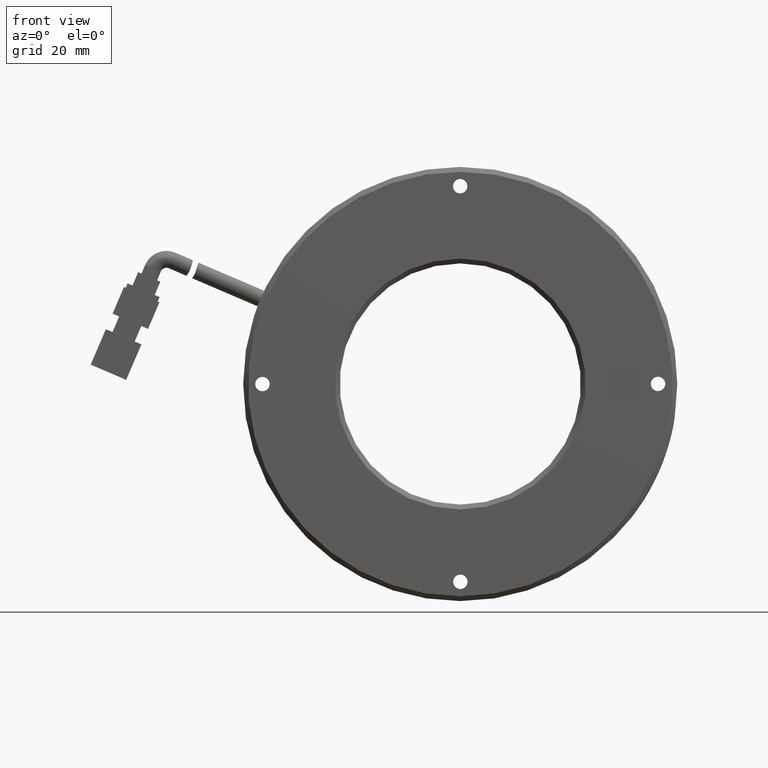
[diagram: clean part render]
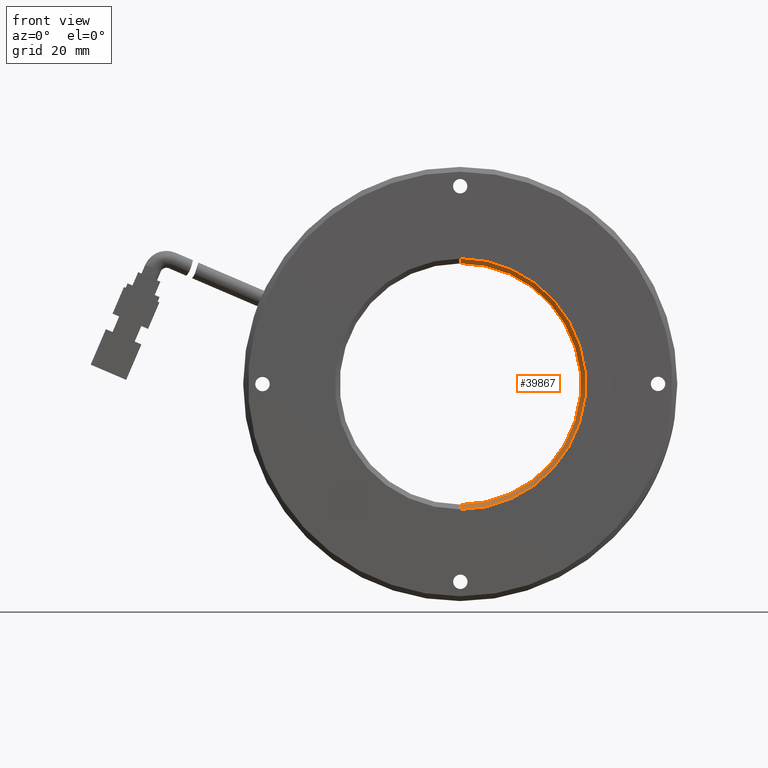
[diagram: same view with one face highlighted and labeled with its STEP entity id]
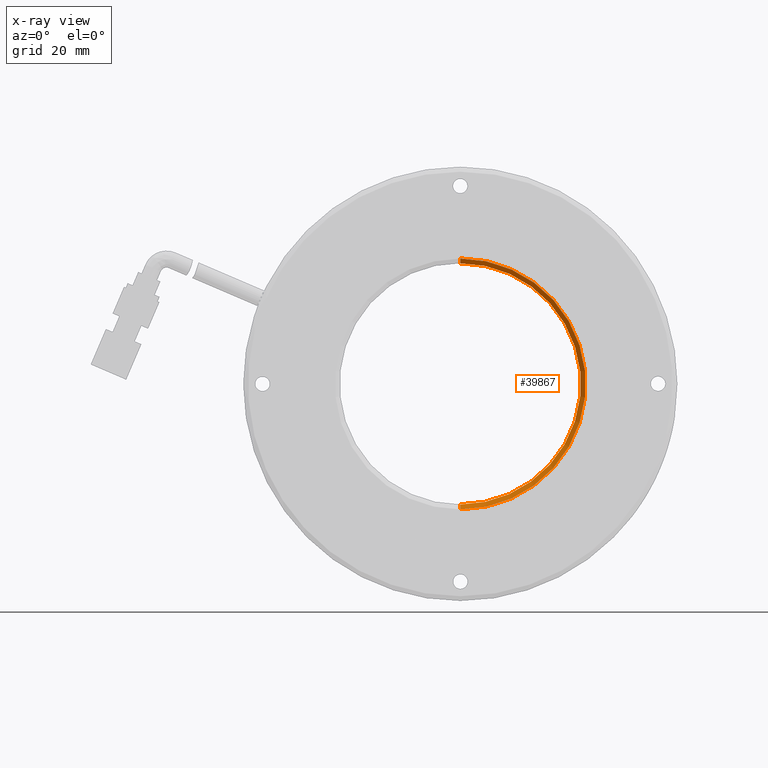
[diagram: x-ray of the same camera — body ghosted, the highlighted face saturated]
A machine part, front view. The second image highlights one B-rep face of the part: STEP entity #39867.
The next image is the same camera in x-ray: the body ghosted, the highlighted face saturated — about 0% of this face is hidden behind the body in this view.
In plain terms, the highlighted conical surface has half-angle 45 deg.
Its self-contained STEP definition (entity closure, byte-faithful):
#1392 = DIRECTION ( 'NONE',  ( 8.659560562354857700E-017, -0.7071067811865536800, 0.7071067811865414700 ) ) ;
#2200 = CARTESIAN_POINT ( 'NONE',  ( 3.571428571428565800, -0.3764478764478824100, -25.00000000000000000 ) ) ;
#2369 = DIRECTION ( 'NONE',  ( 0.0000000000000000000, -1.000000000000000000, 0.0000000000000000000 ) ) ;
#3345 = VERTEX_POINT ( 'NONE', #2200 ) ;
#3584 = ORIENTED_EDGE ( 'NONE', *, *, #33207, .T. ) ;
#6224 = ORIENTED_EDGE ( 'NONE', *, *, #23720, .T. ) ;
#7498 = AXIS2_PLACEMENT_3D ( 'NONE', #21226, #2369, #24425 ) ;
#9466 = CARTESIAN_POINT ( 'NONE',  ( 3.571428571428565800, -1.376447876447879400, -25.99999999999998200 ) ) ;
#9866 = LINE ( 'NONE', #39361, #26625 ) ;
#10005 = DIRECTION ( 'NONE',  ( 0.0000000000000000000, -1.000000000000000000, 0.0000000000000000000 ) ) ;
#12610 = DIRECTION ( 'NONE',  ( 0.0000000000000000000, -0.7071067811865536800, -0.7071067811865414700 ) ) ;
#13593 = EDGE_CURVE ( 'NONE', #3345, #31933, #35898, .T. ) ;
#15666 = CARTESIAN_POINT ( 'NONE',  ( 3.571428571428565800, -1.376447876447879400, 0.0000000000000000000 ) ) ;
#16420 = VERTEX_POINT ( 'NONE', #24353 ) ;
#16934 = CONICAL_SURFACE ( 'NONE', #23900, 25.99999999999998200, 0.7853981633974396200 ) ;
#18333 = ORIENTED_EDGE ( 'NONE', *, *, #23031, .F. ) ;
#18800 = VERTEX_POINT ( 'NONE', #29825 ) ;
#18852 = DIRECTION ( 'NONE',  ( 0.0000000000000000000, -1.000000000000000000, 0.0000000000000000000 ) ) ;
#21046 = EDGE_LOOP ( 'NONE', ( #18333, #31181, #6224, #3584 ) ) ;
#21226 = CARTESIAN_POINT ( 'NONE',  ( 3.571428571428565800, -1.376447876447878900, 0.0000000000000000000 ) ) ;
#23031 = EDGE_CURVE ( 'NONE', #31933, #16420, #9866, .T. ) ;
#23720 = EDGE_CURVE ( 'NONE', #3345, #18800, #33384, .T. ) ;
#23900 = AXIS2_PLACEMENT_3D ( 'NONE', #15666, #18852, #31545 ) ;
#24353 = CARTESIAN_POINT ( 'NONE',  ( 3.571428571428568500, -1.376447876447878900, 25.99999999999998200 ) ) ;
#24425 = DIRECTION ( 'NONE',  ( 0.0000000000000000000, 0.0000000000000000000, -1.000000000000000000 ) ) ;
#26625 = VECTOR ( 'NONE', #1392, 1000.000000000000000 ) ;
#27586 = AXIS2_PLACEMENT_3D ( 'NONE', #28867, #10005, #32059 ) ;
#28867 = CARTESIAN_POINT ( 'NONE',  ( 3.571428571428565800, -0.3764478764478815200, 0.0000000000000000000 ) ) ;
#29825 = CARTESIAN_POINT ( 'NONE',  ( 3.571428571428565800, -1.376447876447878900, -25.99999999999998200 ) ) ;
#31181 = ORIENTED_EDGE ( 'NONE', *, *, #13593, .F. ) ;
#31545 = DIRECTION ( 'NONE',  ( 0.0000000000000000000, 0.0000000000000000000, -1.000000000000000000 ) ) ;
#31933 = VERTEX_POINT ( 'NONE', #32629 ) ;
#32059 = DIRECTION ( 'NONE',  ( 0.0000000000000000000, -3.469446951953614200E-017, -1.000000000000000000 ) ) ;
#32629 = CARTESIAN_POINT ( 'NONE',  ( 3.571428571428568500, -0.3764478764478815200, 25.00000000000000000 ) ) ;
#33207 = EDGE_CURVE ( 'NONE', #18800, #16420, #38276, .T. ) ;
#33384 = LINE ( 'NONE', #9466, #40752 ) ;
#35898 = CIRCLE ( 'NONE', #27586, 25.00000000000000000 ) ;
#37672 = FACE_OUTER_BOUND ( 'NONE', #21046, .T. ) ;
#38276 = CIRCLE ( 'NONE', #7498, 25.99999999999998200 ) ;
#39361 = CARTESIAN_POINT ( 'NONE',  ( 3.571428571428568500, -1.376447876447879400, 25.99999999999998200 ) ) ;
#39867 = ADVANCED_FACE ( 'NONE', ( #37672 ), #16934, .F. ) ;
#40752 = VECTOR ( 'NONE', #12610, 1000.000000000000000 ) ;